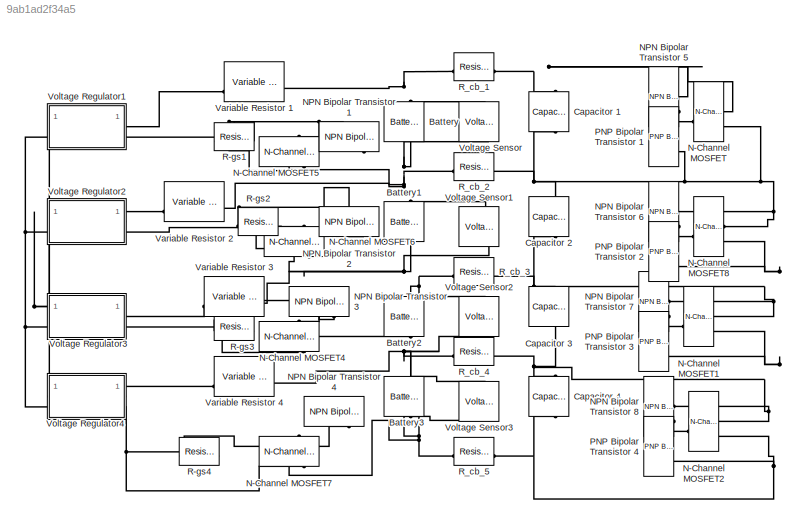
MODEL slx_9ab1ad2f34a5
KIND model
CONFIG AbsTol = auto
CONFIG EnableMultiTasking = off
CONFIG FixedStep = auto
CONFIG MaxStep = auto
CONFIG MinStep = auto
CONFIG RelTol = 1e-3
CONFIG SampleTimeConstraint = Unconstrained
CONFIG SolverName = VariableStepAuto
CONFIG StartTime = 0.0
CONFIG StopTime = 10.0
BLOCK [Reference] Battery  REF=batteryecm_lib/Battery
  NameLocation = right
  SourceBlock = batteryecm_lib/Battery
  SourceType = Battery
BLOCK [Reference] Battery1  REF=batteryecm_lib/Battery
  NameLocation = right
  SourceBlock = batteryecm_lib/Battery
  SourceType = Battery
BLOCK [Reference] Battery2  REF=batteryecm_lib/Battery
  NameLocation = right
  SourceBlock = batteryecm_lib/Battery
  SourceType = Battery
BLOCK [Reference] Battery3  REF=batteryecm_lib/Battery
  NameLocation = right
  SourceBlock = batteryecm_lib/Battery
  SourceType = Battery
BLOCK [Reference] Capacitor 1  REF=fl_lib/Electrical/Electrical Elements/Capacitor
  NameLocation = top
  SourceBlock = fl_lib/Electrical/Electrical Elements/Capacitor
  SourceType = Capacitor
BLOCK [Reference] Capacitor 2  REF=fl_lib/Electrical/Electrical Elements/Capacitor
  NameLocation = top
  SourceBlock = fl_lib/Electrical/Electrical Elements/Capacitor
  SourceType = Capacitor
BLOCK [Reference] Capacitor 3  REF=fl_lib/Electrical/Electrical Elements/Capacitor
  SourceBlock = fl_lib/Electrical/Electrical Elements/Capacitor
  SourceType = Capacitor
BLOCK [Reference] Capacitor 4  REF=fl_lib/Electrical/Electrical Elements/Capacitor
  SourceBlock = fl_lib/Electrical/Electrical Elements/Capacitor
  SourceType = Capacitor
BLOCK [Reference] N-Channel MOSFET  REF=ee_lib/Semiconductors &
Converters/N-Channel MOSFET
  SourceBlock = ee_lib/Semiconductors &\nConverters/N-Channel MOSFET
  SourceType = N-Channel MOSFET
BLOCK [Reference] N-Channel MOSFET1  REF=ee_lib/Semiconductors &
Converters/N-Channel MOSFET
  SourceBlock = ee_lib/Semiconductors &\nConverters/N-Channel MOSFET
  SourceType = N-Channel MOSFET
BLOCK [Reference] N-Channel MOSFET2  REF=ee_lib/Semiconductors &
Converters/N-Channel MOSFET
  SourceBlock = ee_lib/Semiconductors &\nConverters/N-Channel MOSFET
  SourceType = N-Channel MOSFET
BLOCK [Reference] N-Channel MOSFET4  REF=ee_lib/Semiconductors &
Converters/N-Channel MOSFET
  NameLocation = left
  SourceBlock = ee_lib/Semiconductors &\nConverters/N-Channel MOSFET
  SourceType = N-Channel MOSFET
BLOCK [Reference] N-Channel MOSFET5  REF=ee_lib/Semiconductors &
Converters/N-Channel MOSFET
  NameLocation = left
  SourceBlock = ee_lib/Semiconductors &\nConverters/N-Channel MOSFET
  SourceType = N-Channel MOSFET
BLOCK [Reference] N-Channel MOSFET6  REF=ee_lib/Semiconductors &
Converters/N-Channel MOSFET
  NameLocation = left
  SourceBlock = ee_lib/Semiconductors &\nConverters/N-Channel MOSFET
  SourceType = N-Channel MOSFET
BLOCK [Reference] N-Channel MOSFET7  REF=ee_lib/Semiconductors &
Converters/N-Channel MOSFET
  NameLocation = left
  SourceBlock = ee_lib/Semiconductors &\nConverters/N-Channel MOSFET
  SourceType = N-Channel MOSFET
BLOCK [Reference] N-Channel MOSFET8  REF=ee_lib/Semiconductors &
Converters/N-Channel MOSFET
  SourceBlock = ee_lib/Semiconductors &\nConverters/N-Channel MOSFET
  SourceType = N-Channel MOSFET
BLOCK [Reference] NPN Bipolar Transistor 1  REF=ee_lib/Semiconductors &
Converters/NPN Bipolar
Transistor
  NameLocation = top
  SourceBlock = ee_lib/Semiconductors &\nConverters/NPN Bipolar\nTransistor
  SourceType = NPN Bipolar\nTransistor
BLOCK [Reference] NPN Bipolar Transistor 2  REF=ee_lib/Semiconductors &
Converters/NPN Bipolar
Transistor
  SourceBlock = ee_lib/Semiconductors &\nConverters/NPN Bipolar\nTransistor
  SourceType = NPN Bipolar\nTransistor
BLOCK [Reference] NPN Bipolar Transistor 3  REF=ee_lib/Semiconductors &
Converters/NPN Bipolar
Transistor
  NameLocation = right
  SourceBlock = ee_lib/Semiconductors &\nConverters/NPN Bipolar\nTransistor
  SourceType = NPN Bipolar\nTransistor
BLOCK [Reference] NPN Bipolar Transistor 4  REF=ee_lib/Semiconductors &
Converters/NPN Bipolar
Transistor
  NameLocation = top
  SourceBlock = ee_lib/Semiconductors &\nConverters/NPN Bipolar\nTransistor
  SourceType = NPN Bipolar\nTransistor
BLOCK [Reference] NPN Bipolar Transistor 5  REF=ee_lib/Semiconductors &
Converters/NPN Bipolar
Transistor
  NameLocation = left
  SourceBlock = ee_lib/Semiconductors &\nConverters/NPN Bipolar\nTransistor
  SourceType = NPN Bipolar\nTransistor
BLOCK [Reference] NPN Bipolar Transistor 6  REF=ee_lib/Semiconductors &
Converters/NPN Bipolar
Transistor
  NameLocation = left
  SourceBlock = ee_lib/Semiconductors &\nConverters/NPN Bipolar\nTransistor
  SourceType = NPN Bipolar\nTransistor
BLOCK [Reference] NPN Bipolar Transistor 7  REF=ee_lib/Semiconductors &
Converters/NPN Bipolar
Transistor
  NameLocation = left
  SourceBlock = ee_lib/Semiconductors &\nConverters/NPN Bipolar\nTransistor
  SourceType = NPN Bipolar\nTransistor
BLOCK [Reference] NPN Bipolar Transistor 8  REF=ee_lib/Semiconductors &
Converters/NPN Bipolar
Transistor
  NameLocation = left
  SourceBlock = ee_lib/Semiconductors &\nConverters/NPN Bipolar\nTransistor
  SourceType = NPN Bipolar\nTransistor
BLOCK [Reference] PNP Bipolar Transistor 1  REF=ee_lib/Semiconductors &
Converters/PNP Bipolar
Transistor
  NameLocation = left
  SourceBlock = ee_lib/Semiconductors &\nConverters/PNP Bipolar\nTransistor
  SourceType = PNP Bipolar\nTransistor
BLOCK [Reference] PNP Bipolar Transistor 2  REF=ee_lib/Semiconductors &
Converters/PNP Bipolar
Transistor
  NameLocation = left
  SourceBlock = ee_lib/Semiconductors &\nConverters/PNP Bipolar\nTransistor
  SourceType = PNP Bipolar\nTransistor
BLOCK [Reference] PNP Bipolar Transistor 3  REF=ee_lib/Semiconductors &
Converters/PNP Bipolar
Transistor
  NameLocation = left
  SourceBlock = ee_lib/Semiconductors &\nConverters/PNP Bipolar\nTransistor
  SourceType = PNP Bipolar\nTransistor
BLOCK [Reference] PNP Bipolar Transistor 4  REF=ee_lib/Semiconductors &
Converters/PNP Bipolar
Transistor
  NameLocation = left
  SourceBlock = ee_lib/Semiconductors &\nConverters/PNP Bipolar\nTransistor
  SourceType = PNP Bipolar\nTransistor
BLOCK [Reference] R-gs1  REF=fl_lib/Electrical/Electrical Elements/Resistor
  NameLocation = top
  SourceBlock = fl_lib/Electrical/Electrical Elements/Resistor
  SourceType = Resistor
BLOCK [Reference] R-gs2  REF=fl_lib/Electrical/Electrical Elements/Resistor
  NameLocation = top
  SourceBlock = fl_lib/Electrical/Electrical Elements/Resistor
  SourceType = Resistor
BLOCK [Reference] R-gs3  REF=fl_lib/Electrical/Electrical Elements/Resistor
  SourceBlock = fl_lib/Electrical/Electrical Elements/Resistor
  SourceType = Resistor
BLOCK [Reference] R-gs4  REF=fl_lib/Electrical/Electrical Elements/Resistor
  NameLocation = top
  SourceBlock = fl_lib/Electrical/Electrical Elements/Resistor
  SourceType = Resistor
BLOCK [Reference] R_cb_1  REF=fl_lib/Electrical/Electrical Elements/Resistor
  NameLocation = top
  SourceBlock = fl_lib/Electrical/Electrical Elements/Resistor
  SourceType = Resistor
BLOCK [Reference] R_cb_2  REF=fl_lib/Electrical/Electrical Elements/Resistor
  NameLocation = right
  SourceBlock = fl_lib/Electrical/Electrical Elements/Resistor
  SourceType = Resistor
BLOCK [Reference] R_cb_3  REF=fl_lib/Electrical/Electrical Elements/Resistor
  NameLocation = right
  SourceBlock = fl_lib/Electrical/Electrical Elements/Resistor
  SourceType = Resistor
BLOCK [Reference] R_cb_4  REF=fl_lib/Electrical/Electrical Elements/Resistor
  NameLocation = right
  SourceBlock = fl_lib/Electrical/Electrical Elements/Resistor
  SourceType = Resistor
BLOCK [Reference] R_cb_5  REF=fl_lib/Electrical/Electrical Elements/Resistor
  SourceBlock = fl_lib/Electrical/Electrical Elements/Resistor
  SourceType = Resistor
BLOCK [Reference] Variable Resistor 1  REF=fl_lib/Electrical/Electrical Elements/Variable Resistor
  NameLocation = top
  SourceBlock = fl_lib/Electrical/Electrical Elements/Variable Resistor
  SourceType = Variable Resistor
BLOCK [Reference] Variable Resistor 2  REF=fl_lib/Electrical/Electrical Elements/Variable Resistor
  SourceBlock = fl_lib/Electrical/Electrical Elements/Variable Resistor
  SourceType = Variable Resistor
BLOCK [Reference] Variable Resistor 3  REF=fl_lib/Electrical/Electrical Elements/Variable Resistor
  NameLocation = top
  SourceBlock = fl_lib/Electrical/Electrical Elements/Variable Resistor
  SourceType = Variable Resistor
BLOCK [Reference] Variable Resistor 4  REF=fl_lib/Electrical/Electrical Elements/Variable Resistor
  SourceBlock = fl_lib/Electrical/Electrical Elements/Variable Resistor
  SourceType = Variable Resistor
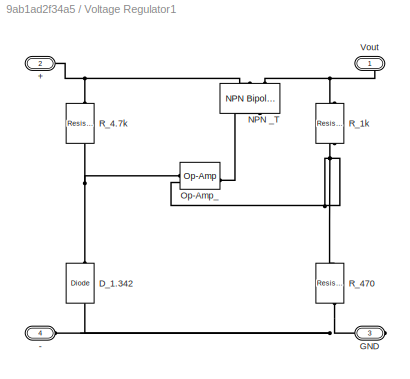
BLOCK [SubSystem] Voltage Regulator1
BLOCK [PMIOPort] Voltage Regulator1/+
  Port = 2
  Side = Left
BLOCK [PMIOPort] Voltage Regulator1/-
  Port = 4
  Side = Left
BLOCK [Reference] Voltage Regulator1/D_1.342  REF=ee_lib/Semiconductors &
Converters/Diode
  NameLocation = right
  SourceBlock = ee_lib/Semiconductors &\nConverters/Diode
  SourceType = Diode
BLOCK [PMIOPort] Voltage Regulator1/GND
  Port = 3
  Side = Right
BLOCK [Reference] Voltage Regulator1/NPN _T  REF=ee_lib/Semiconductors &
Converters/NPN Bipolar
Transistor
  NameLocation = top
  SourceBlock = ee_lib/Semiconductors &\nConverters/NPN Bipolar\nTransistor
  SourceType = NPN Bipolar\nTransistor
BLOCK [Reference] Voltage Regulator1/Op-Amp_  REF=fl_lib/Electrical/Electrical Elements/Op-Amp
  SourceBlock = fl_lib/Electrical/Electrical Elements/Op-Amp
  SourceType = Op-Amp
BLOCK [Reference] Voltage Regulator1/R_1k  REF=fl_lib/Electrical/Electrical Elements/Resistor
  NameLocation = left
  SourceBlock = fl_lib/Electrical/Electrical Elements/Resistor
  SourceType = Resistor
BLOCK [Reference] Voltage Regulator1/R_4.7k  REF=fl_lib/Electrical/Electrical Elements/Resistor
  NameLocation = left
  SourceBlock = fl_lib/Electrical/Electrical Elements/Resistor
  SourceType = Resistor
BLOCK [Reference] Voltage Regulator1/R_470  REF=fl_lib/Electrical/Electrical Elements/Resistor
  NameLocation = left
  SourceBlock = fl_lib/Electrical/Electrical Elements/Resistor
  SourceType = Resistor
BLOCK [PMIOPort] Voltage Regulator1/Vout
  Side = Right
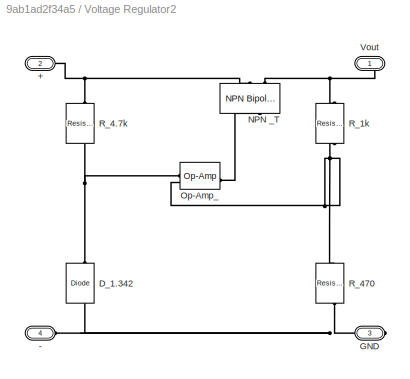
BLOCK [SubSystem] Voltage Regulator2
BLOCK [PMIOPort] Voltage Regulator2/+
  Port = 2
  Side = Left
BLOCK [PMIOPort] Voltage Regulator2/-
  Port = 4
  Side = Left
BLOCK [Reference] Voltage Regulator2/D_1.342  REF=ee_lib/Semiconductors &
Converters/Diode
  NameLocation = right
  SourceBlock = ee_lib/Semiconductors &\nConverters/Diode
  SourceType = Diode
BLOCK [PMIOPort] Voltage Regulator2/GND
  Port = 3
  Side = Right
BLOCK [Reference] Voltage Regulator2/NPN _T  REF=ee_lib/Semiconductors &
Converters/NPN Bipolar
Transistor
  NameLocation = top
  SourceBlock = ee_lib/Semiconductors &\nConverters/NPN Bipolar\nTransistor
  SourceType = NPN Bipolar\nTransistor
BLOCK [Reference] Voltage Regulator2/Op-Amp_  REF=fl_lib/Electrical/Electrical Elements/Op-Amp
  SourceBlock = fl_lib/Electrical/Electrical Elements/Op-Amp
  SourceType = Op-Amp
BLOCK [Reference] Voltage Regulator2/R_1k  REF=fl_lib/Electrical/Electrical Elements/Resistor
  NameLocation = left
  SourceBlock = fl_lib/Electrical/Electrical Elements/Resistor
  SourceType = Resistor
BLOCK [Reference] Voltage Regulator2/R_4.7k  REF=fl_lib/Electrical/Electrical Elements/Resistor
  NameLocation = left
  SourceBlock = fl_lib/Electrical/Electrical Elements/Resistor
  SourceType = Resistor
BLOCK [Reference] Voltage Regulator2/R_470  REF=fl_lib/Electrical/Electrical Elements/Resistor
  NameLocation = left
  SourceBlock = fl_lib/Electrical/Electrical Elements/Resistor
  SourceType = Resistor
BLOCK [PMIOPort] Voltage Regulator2/Vout
  Side = Right
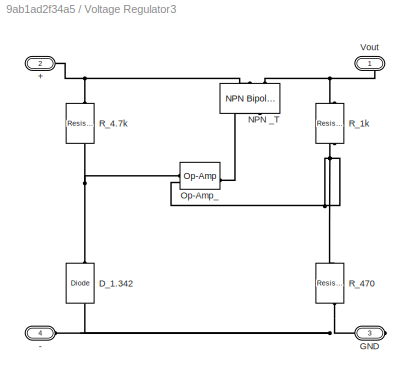
BLOCK [SubSystem] Voltage Regulator3
BLOCK [PMIOPort] Voltage Regulator3/+
  Port = 2
  Side = Left
BLOCK [PMIOPort] Voltage Regulator3/-
  Port = 4
  Side = Left
BLOCK [Reference] Voltage Regulator3/D_1.342  REF=ee_lib/Semiconductors &
Converters/Diode
  NameLocation = right
  SourceBlock = ee_lib/Semiconductors &\nConverters/Diode
  SourceType = Diode
BLOCK [PMIOPort] Voltage Regulator3/GND
  Port = 3
  Side = Right
BLOCK [Reference] Voltage Regulator3/NPN _T  REF=ee_lib/Semiconductors &
Converters/NPN Bipolar
Transistor
  NameLocation = top
  SourceBlock = ee_lib/Semiconductors &\nConverters/NPN Bipolar\nTransistor
  SourceType = NPN Bipolar\nTransistor
BLOCK [Reference] Voltage Regulator3/Op-Amp_  REF=fl_lib/Electrical/Electrical Elements/Op-Amp
  SourceBlock = fl_lib/Electrical/Electrical Elements/Op-Amp
  SourceType = Op-Amp
BLOCK [Reference] Voltage Regulator3/R_1k  REF=fl_lib/Electrical/Electrical Elements/Resistor
  NameLocation = left
  SourceBlock = fl_lib/Electrical/Electrical Elements/Resistor
  SourceType = Resistor
BLOCK [Reference] Voltage Regulator3/R_4.7k  REF=fl_lib/Electrical/Electrical Elements/Resistor
  NameLocation = left
  SourceBlock = fl_lib/Electrical/Electrical Elements/Resistor
  SourceType = Resistor
BLOCK [Reference] Voltage Regulator3/R_470  REF=fl_lib/Electrical/Electrical Elements/Resistor
  NameLocation = left
  SourceBlock = fl_lib/Electrical/Electrical Elements/Resistor
  SourceType = Resistor
BLOCK [PMIOPort] Voltage Regulator3/Vout
  Side = Right
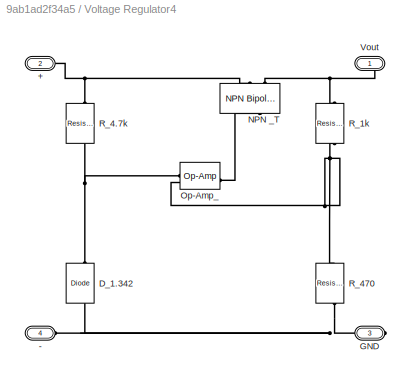
BLOCK [SubSystem] Voltage Regulator4
BLOCK [PMIOPort] Voltage Regulator4/+
  Port = 2
  Side = Left
BLOCK [PMIOPort] Voltage Regulator4/-
  Port = 4
  Side = Left
BLOCK [Reference] Voltage Regulator4/D_1.342  REF=ee_lib/Semiconductors &
Converters/Diode
  NameLocation = right
  SourceBlock = ee_lib/Semiconductors &\nConverters/Diode
  SourceType = Diode
BLOCK [PMIOPort] Voltage Regulator4/GND
  Port = 3
  Side = Right
BLOCK [Reference] Voltage Regulator4/NPN _T  REF=ee_lib/Semiconductors &
Converters/NPN Bipolar
Transistor
  NameLocation = top
  SourceBlock = ee_lib/Semiconductors &\nConverters/NPN Bipolar\nTransistor
  SourceType = NPN Bipolar\nTransistor
BLOCK [Reference] Voltage Regulator4/Op-Amp_  REF=fl_lib/Electrical/Electrical Elements/Op-Amp
  SourceBlock = fl_lib/Electrical/Electrical Elements/Op-Amp
  SourceType = Op-Amp
BLOCK [Reference] Voltage Regulator4/R_1k  REF=fl_lib/Electrical/Electrical Elements/Resistor
  NameLocation = left
  SourceBlock = fl_lib/Electrical/Electrical Elements/Resistor
  SourceType = Resistor
BLOCK [Reference] Voltage Regulator4/R_4.7k  REF=fl_lib/Electrical/Electrical Elements/Resistor
  NameLocation = left
  SourceBlock = fl_lib/Electrical/Electrical Elements/Resistor
  SourceType = Resistor
BLOCK [Reference] Voltage Regulator4/R_470  REF=fl_lib/Electrical/Electrical Elements/Resistor
  NameLocation = left
  SourceBlock = fl_lib/Electrical/Electrical Elements/Resistor
  SourceType = Resistor
BLOCK [PMIOPort] Voltage Regulator4/Vout
  Side = Right
BLOCK [Reference] Voltage Sensor  REF=fl_lib/Electrical/Electrical Sensors/Voltage Sensor
  NameLocation = right
  SourceBlock = fl_lib/Electrical/Electrical Sensors/Voltage Sensor
  SourceType = Voltage Sensor
BLOCK [Reference] Voltage Sensor1  REF=fl_lib/Electrical/Electrical Sensors/Voltage Sensor
  NameLocation = right
  SourceBlock = fl_lib/Electrical/Electrical Sensors/Voltage Sensor
  SourceType = Voltage Sensor
BLOCK [Reference] Voltage Sensor2  REF=fl_lib/Electrical/Electrical Sensors/Voltage Sensor
  NameLocation = right
  SourceBlock = fl_lib/Electrical/Electrical Sensors/Voltage Sensor
  SourceType = Voltage Sensor
BLOCK [Reference] Voltage Sensor3  REF=fl_lib/Electrical/Electrical Sensors/Voltage Sensor
  NameLocation = right
  SourceBlock = fl_lib/Electrical/Electrical Sensors/Voltage Sensor
  SourceType = Voltage Sensor
PNET net1: Battery1:LConn1 -- Battery:RConn1 -- N-Channel MOSFET5:RConn1 -- R_cb_2:LConn1 -- Variable Resistor 2:RConn1 -- Voltage Sensor1:LConn1 -- Voltage Sensor:RConn2
PNET net2: Battery1:RConn1 -- Battery2:LConn1 -- N-Channel MOSFET6:RConn1 -- R_cb_3:LConn1 -- Variable Resistor 3:RConn1 -- Voltage Sensor1:RConn2 -- Voltage Sensor2:LConn1
PNET net3: Battery2:RConn1 -- Battery3:LConn1 -- N-Channel MOSFET4:RConn1 -- R_cb_4:LConn1 -- Variable Resistor 4:RConn1 -- Voltage Sensor2:RConn2 -- Voltage Sensor3:LConn1
PNET net4: Battery3:RConn1 -- N-Channel MOSFET7:RConn1 -- R_cb_5:LConn1 -- Voltage Sensor3:RConn2
PNET net5: Battery:LConn1 -- R_cb_1:LConn1 -- Variable Resistor 1:RConn1 -- Voltage Sensor:LConn1
PNET net6: Capacitor 1:LConn1 -- N-Channel MOSFET:RConn1 -- NPN Bipolar Transistor 5:RConn1 -- R_cb_1:RConn1
PNET net7: Capacitor 1:RConn1 -- Capacitor 2:LConn1 -- N-Channel MOSFET8:RConn1 -- N-Channel MOSFET:RConn2 -- NPN Bipolar Transistor 6:RConn1 -- PNP Bipolar Transistor 1:RConn2 -- R_cb_2:RConn1
PNET net8: Capacitor 2:RConn1 -- Capacitor 3:LConn1 -- N-Channel MOSFET1:RConn1 -- N-Channel MOSFET8:RConn2 -- NPN Bipolar Transistor 7:RConn1 -- PNP Bipolar Transistor 2:RConn2 -- R_cb_3:RConn1
PNET net9: Capacitor 3:RConn1 -- Capacitor 4:LConn1 -- N-Channel MOSFET1:RConn2 -- N-Channel MOSFET2:RConn1 -- NPN Bipolar Transistor 8:RConn1 -- PNP Bipolar Transistor 3:RConn2 -- R_cb_4:RConn1
PNET net10: Capacitor 4:RConn1 -- N-Channel MOSFET2:RConn2 -- PNP Bipolar Transistor 4:RConn2 -- R_cb_5:RConn1
PNET net11: N-Channel MOSFET1:LConn1 -- NPN Bipolar Transistor 7:RConn2 -- PNP Bipolar Transistor 3:RConn1
PNET net12: N-Channel MOSFET2:LConn1 -- NPN Bipolar Transistor 8:RConn2 -- PNP Bipolar Transistor 4:RConn1
PNET net13: N-Channel MOSFET4:LConn1 -- NPN Bipolar Transistor 3:RConn2 -- R-gs3:LConn1
PNET net14: N-Channel MOSFET4:RConn2 -- R-gs3:RConn1 -- Voltage Regulator3:RConn2
PNET net15: N-Channel MOSFET5:LConn1 -- NPN Bipolar Transistor 1:RConn2 -- R-gs1:LConn1
PNET net16: N-Channel MOSFET5:RConn2 -- R-gs1:RConn1 -- Voltage Regulator1:RConn2
PNET net17: N-Channel MOSFET6:LConn1 -- NPN Bipolar Transistor 2:RConn2 -- R-gs2:LConn1
PNET net18: N-Channel MOSFET6:RConn2 -- R-gs2:RConn1 -- Voltage Regulator2:RConn2
PNET net19: N-Channel MOSFET7:LConn1 -- NPN Bipolar Transistor 4:RConn2 -- R-gs4:LConn1
PNET net20: N-Channel MOSFET7:RConn2 -- R-gs4:RConn1 -- Voltage Regulator4:RConn2
PNET net21: N-Channel MOSFET8:LConn1 -- NPN Bipolar Transistor 6:RConn2 -- PNP Bipolar Transistor 2:RConn1
PNET net22: N-Channel MOSFET:LConn1 -- NPN Bipolar Transistor 5:RConn2 -- PNP Bipolar Transistor 1:RConn1
PLINE Variable Resistor 1:LConn2 -- Voltage Regulator1:RConn1
PLINE Variable Resistor 2:LConn2 -- Voltage Regulator2:RConn1
PLINE Variable Resistor 3:LConn2 -- Voltage Regulator3:RConn1
PLINE Variable Resistor 4:LConn2 -- Voltage Regulator4:RConn1
PNET net23: Voltage Regulator1/+:RConn1 -- Voltage Regulator1/NPN _T:RConn1 -- Voltage Regulator1/R_4.7k:LConn1
PNET net24: Voltage Regulator1/-:RConn1 -- Voltage Regulator1/D_1.342:LConn1 -- Voltage Regulator1/GND:RConn1 -- Voltage Regulator1/R_470:RConn1
PNET net25: Voltage Regulator1/D_1.342:RConn1 -- Voltage Regulator1/Op-Amp_:LConn1 -- Voltage Regulator1/R_4.7k:RConn1
PLINE Voltage Regulator1/NPN _T:LConn1 -- Voltage Regulator1/Op-Amp_:RConn1
PNET net26: Voltage Regulator1/NPN _T:RConn2 -- Voltage Regulator1/R_1k:LConn1 -- Voltage Regulator1/Vout:RConn1
PNET net27: Voltage Regulator1/Op-Amp_:LConn2 -- Voltage Regulator1/R_1k:RConn1 -- Voltage Regulator1/R_470:LConn1
PNET net28: Voltage Regulator1:LConn1 -- Voltage Regulator2:LConn1 -- Voltage Regulator3:LConn1 -- Voltage Regulator4:LConn1
PNET net29: Voltage Regulator1:LConn2 -- Voltage Regulator2:LConn2 -- Voltage Regulator3:LConn2 -- Voltage Regulator4:LConn2
PNET net30: Voltage Regulator2/+:RConn1 -- Voltage Regulator2/NPN _T:RConn1 -- Voltage Regulator2/R_4.7k:LConn1
PNET net31: Voltage Regulator2/-:RConn1 -- Voltage Regulator2/D_1.342:LConn1 -- Voltage Regulator2/GND:RConn1 -- Voltage Regulator2/R_470:RConn1
PNET net32: Voltage Regulator2/D_1.342:RConn1 -- Voltage Regulator2/Op-Amp_:LConn1 -- Voltage Regulator2/R_4.7k:RConn1
PLINE Voltage Regulator2/NPN _T:LConn1 -- Voltage Regulator2/Op-Amp_:RConn1
PNET net33: Voltage Regulator2/NPN _T:RConn2 -- Voltage Regulator2/R_1k:LConn1 -- Voltage Regulator2/Vout:RConn1
PNET net34: Voltage Regulator2/Op-Amp_:LConn2 -- Voltage Regulator2/R_1k:RConn1 -- Voltage Regulator2/R_470:LConn1
PNET net35: Voltage Regulator3/+:RConn1 -- Voltage Regulator3/NPN _T:RConn1 -- Voltage Regulator3/R_4.7k:LConn1
PNET net36: Voltage Regulator3/-:RConn1 -- Voltage Regulator3/D_1.342:LConn1 -- Voltage Regulator3/GND:RConn1 -- Voltage Regulator3/R_470:RConn1
PNET net37: Voltage Regulator3/D_1.342:RConn1 -- Voltage Regulator3/Op-Amp_:LConn1 -- Voltage Regulator3/R_4.7k:RConn1
PLINE Voltage Regulator3/NPN _T:LConn1 -- Voltage Regulator3/Op-Amp_:RConn1
PNET net38: Voltage Regulator3/NPN _T:RConn2 -- Voltage Regulator3/R_1k:LConn1 -- Voltage Regulator3/Vout:RConn1
PNET net39: Voltage Regulator3/Op-Amp_:LConn2 -- Voltage Regulator3/R_1k:RConn1 -- Voltage Regulator3/R_470:LConn1
PNET net40: Voltage Regulator4/+:RConn1 -- Voltage Regulator4/NPN _T:RConn1 -- Voltage Regulator4/R_4.7k:LConn1
PNET net41: Voltage Regulator4/-:RConn1 -- Voltage Regulator4/D_1.342:LConn1 -- Voltage Regulator4/GND:RConn1 -- Voltage Regulator4/R_470:RConn1
PNET net42: Voltage Regulator4/D_1.342:RConn1 -- Voltage Regulator4/Op-Amp_:LConn1 -- Voltage Regulator4/R_4.7k:RConn1
PLINE Voltage Regulator4/NPN _T:LConn1 -- Voltage Regulator4/Op-Amp_:RConn1
PNET net43: Voltage Regulator4/NPN _T:RConn2 -- Voltage Regulator4/R_1k:LConn1 -- Voltage Regulator4/Vout:RConn1
PNET net44: Voltage Regulator4/Op-Amp_:LConn2 -- Voltage Regulator4/R_1k:RConn1 -- Voltage Regulator4/R_470:LConn1
note: PNET lines group multi-terminal physical nets as a canonical sorted terminal list (undirected conserving connections); 2-terminal nets keep the pairwise PLINE form
